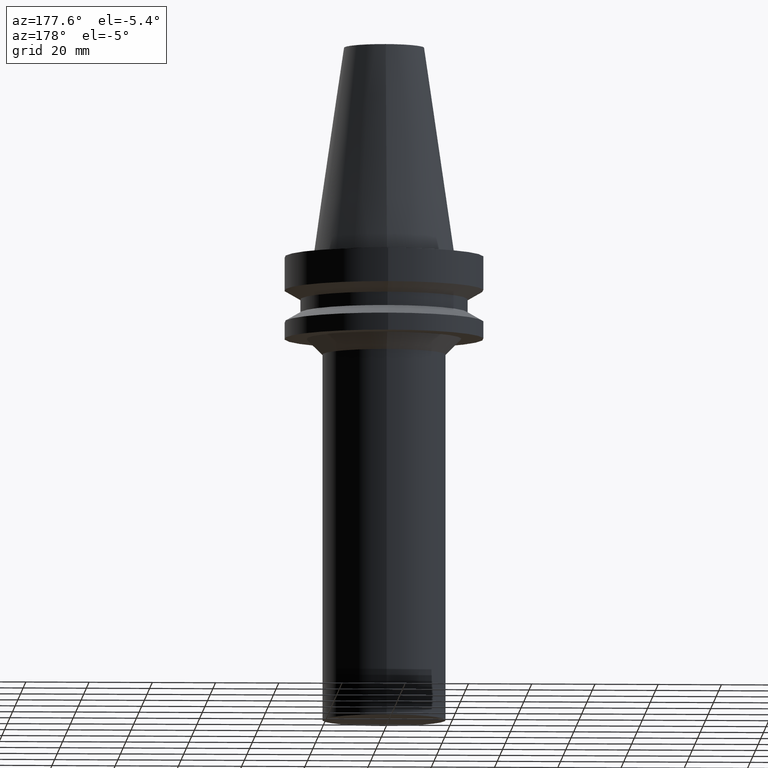
[diagram: clean part render]
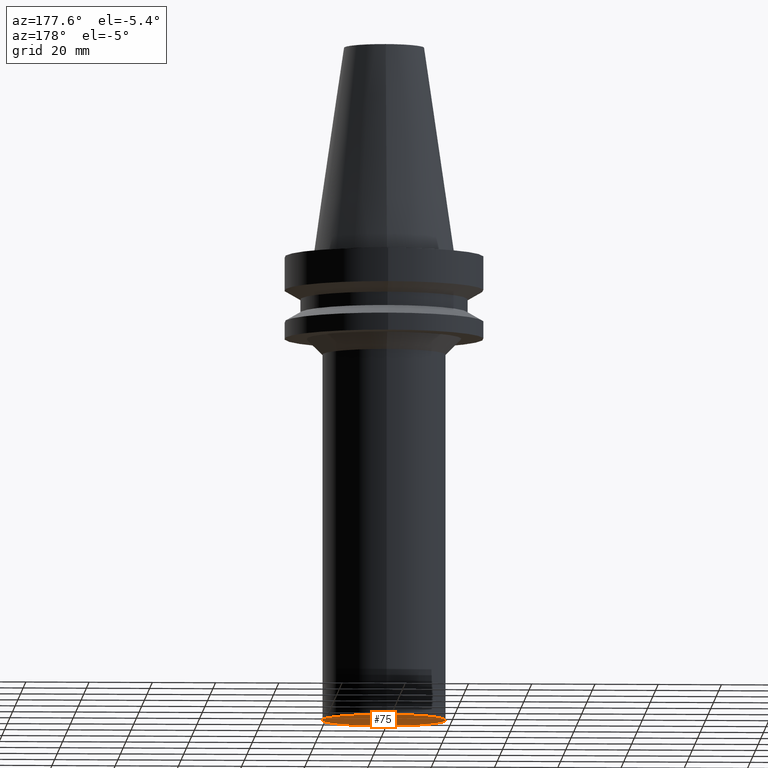
[diagram: same view with one face highlighted and labeled with its STEP entity id]
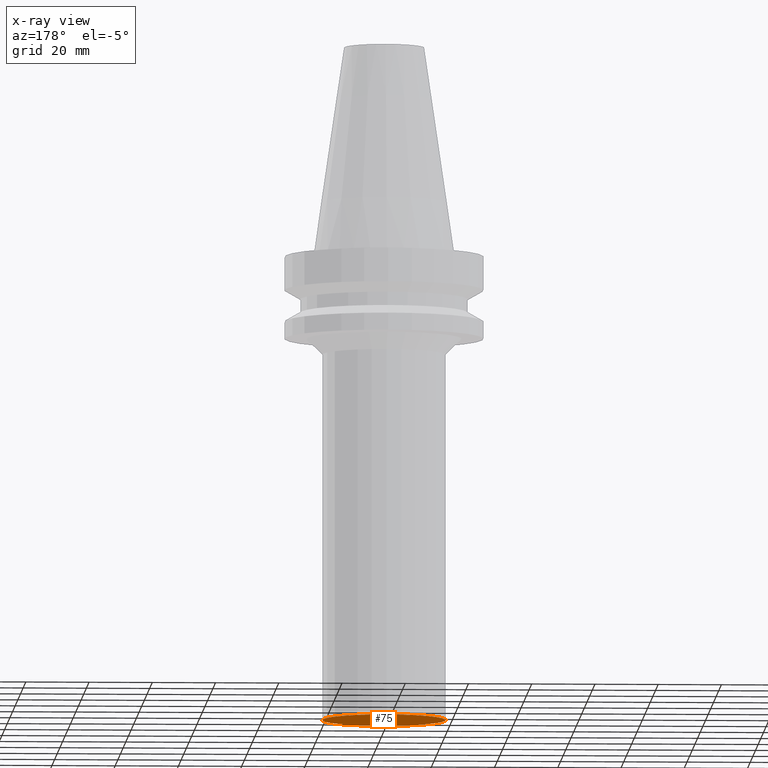
[diagram: x-ray of the same camera — body ghosted, the highlighted face saturated]
A machine part, auxiliary view. The second image highlights one B-rep face of the part: STEP entity #75.
The next image is the same camera in x-ray: the body ghosted, the highlighted face saturated — about 0% of this face is hidden behind the body in this view.
In plain terms, the highlighted planar face has unit normal (0, 0, -1).
Its self-contained STEP definition (entity closure, byte-faithful):
#75=ADVANCED_FACE('',(#89),#90,.T.);
#89=FACE_OUTER_BOUND('',#126,.T.);
#90=PLANE('',#127);
#126=EDGE_LOOP('',(#163));
#127=AXIS2_PLACEMENT_3D('',#164,#165,#166);
#163=ORIENTED_EDGE('',*,*,#226,.T.);
#164=CARTESIAN_POINT('',(9.06238631369041E-015,9.75000000000002,-148.0));
#165=DIRECTION('',(6.12323399573677E-017,1.22464679914735E-016,-1.0));
#166=DIRECTION('',(-1.23259516440783E-032,1.0,1.22464679914735E-016));
#226=EDGE_CURVE('',#238,#238,#239,.T.);
#238=VERTEX_POINT('',#262);
#239=CIRCLE('',#263,19.5);
#262=CARTESIAN_POINT('',(9.06238631369041E-015,19.5,-148.0));
#263=AXIS2_PLACEMENT_3D('',#286,#287,#288);
#286=CARTESIAN_POINT('',(9.06238631369041E-015,1.81247726273808E-014,-148.0));
#287=DIRECTION('',(6.12323399573677E-017,1.22464679914735E-016,-1.0));
#288=DIRECTION('',(-1.23259516440783E-032,1.0,1.22464679914735E-016));